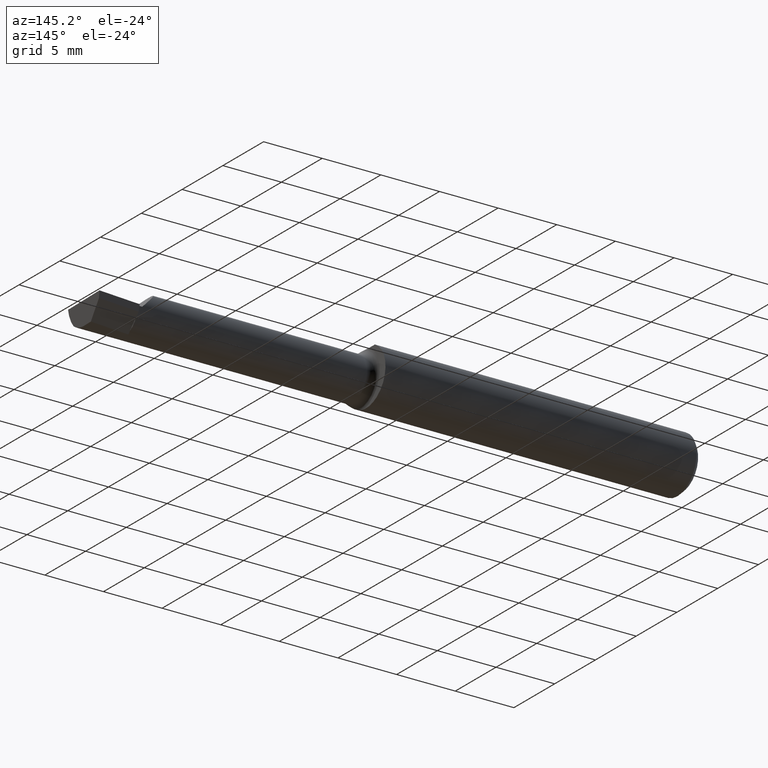
[diagram: clean part render]
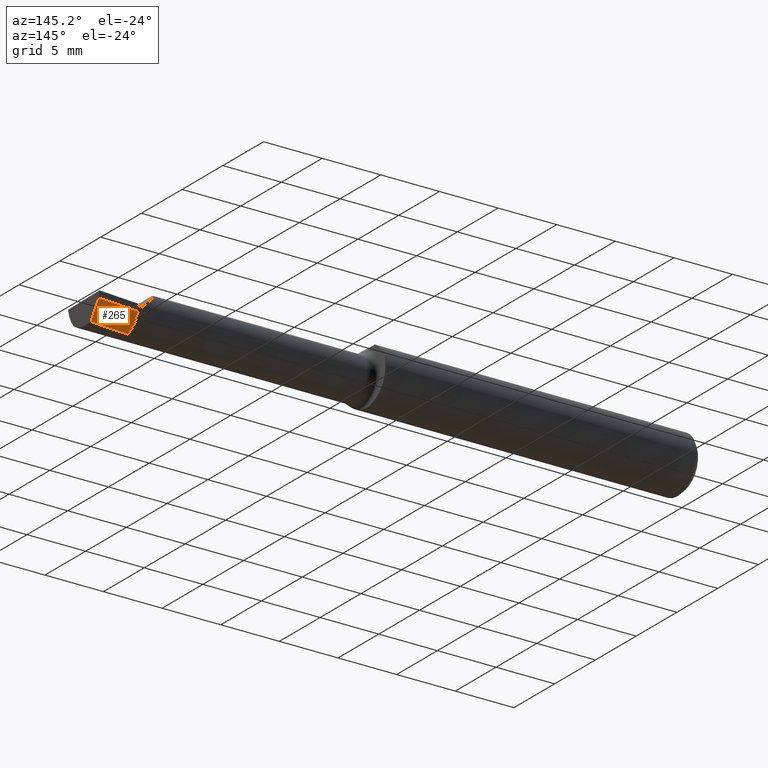
[diagram: same view with one face highlighted and labeled with its STEP entity id]
A machine part, auxiliary view. The second image highlights one B-rep face of the part: STEP entity #265.
In plain terms, the highlighted planar face has unit normal (0.0689, -0.716, 0.6947).
Its self-contained STEP definition (entity closure, byte-faithful):
#10 = VECTOR ( 'NONE', #314, 39.37007874015748143 ) ;
#26 = VERTEX_POINT ( 'NONE', #338 ) ;
#54 = VECTOR ( 'NONE', #136, 39.37007874015748143 ) ;
#74 = DIRECTION ( 'NONE',  ( 0.06894566448119621160, -0.7160281025913035613, 0.6946583704589933683 ) ) ;
#75 = VERTEX_POINT ( 'NONE', #352 ) ;
#78 = ORIENTED_EDGE ( 'NONE', *, *, #355, .F. ) ;
#81 = PLANE ( 'NONE',  #112 ) ;
#82 = EDGE_CURVE ( 'NONE', #75, #623, #153, .T. ) ;
#85 = VECTOR ( 'NONE', #551, 39.37007874015748143 ) ;
#89 = CARTESIAN_POINT ( 'NONE',  ( 1.854999999999999982, 0.003039038829300866676, -0.06252531540616805550 ) ) ;
#112 = AXIS2_PLACEMENT_3D ( 'NONE', #216, #74, #183 ) ;
#136 = DIRECTION ( 'NONE',  ( 0.1053106618241779063, 0.6976485211320171409, 0.7086580314005218595 ) ) ;
#146 = EDGE_CURVE ( 'NONE', #460, #438, #163, .T. ) ;
#147 = VERTEX_POINT ( 'NONE', #360 ) ;
#153 = LINE ( 'NONE', #546, #606 ) ;
#160 = CARTESIAN_POINT ( 'NONE',  ( 1.854999999999999982, 0.02466814268713793043, -0.04023083677511909290 ) ) ;
#161 = ORIENTED_EDGE ( 'NONE', *, *, #597, .T. ) ;
#163 = LINE ( 'NONE', #160, #85 ) ;
#183 = DIRECTION ( 'NONE',  ( 0.000000000000000000, -0.6963153109074924352, -0.7177360153954949196 ) ) ;
#215 = EDGE_CURVE ( 'NONE', #623, #460, #570, .T. ) ;
#216 = CARTESIAN_POINT ( 'NONE',  ( 1.434596552969581662, 0.003814945941878222693, -0.02000000000000000042 ) ) ;
#242 = EDGE_LOOP ( 'NONE', ( #78, #581, #488, #410, #516, #161 ) ) ;
#256 = LINE ( 'NONE', #331, #414 ) ;
#258 = CARTESIAN_POINT ( 'NONE',  ( 1.434596552969581662, 0.003814945941878222693, -0.02000000000000000042 ) ) ;
#265 = ADVANCED_FACE ( 'NONE', ( #508 ), #81, .F. ) ;
#314 = DIRECTION ( 'NONE',  ( 0.9953961983671800740, 0.09584575252021028391, -0.000000000000000000 ) ) ;
#323 = CARTESIAN_POINT ( 'NONE',  ( 1.854999999999999982, 0.03291555154404718353, -0.03172971339384394324 ) ) ;
#331 = CARTESIAN_POINT ( 'NONE',  ( 1.996243047997680486, 0.008417438355111557524, -0.07100000000000021572 ) ) ;
#338 = CARTESIAN_POINT ( 'NONE',  ( 1.989797099917948842, 0.007796764149783521822, -0.07100000000000021572 ) ) ;
#351 = LINE ( 'NONE', #258, #10 ) ;
#352 = CARTESIAN_POINT ( 'NONE',  ( 1.854999999999999982, 0.04429519371539571149, -0.02000000000000000042 ) ) ;
#355 = EDGE_CURVE ( 'NONE', #26, #147, #494, .T. ) ;
#356 = DIRECTION ( 'NONE',  ( 2.972230601656782806E-18, -0.6963153109074924352, -0.7177360153954949196 ) ) ;
#360 = CARTESIAN_POINT ( 'NONE',  ( 1.997375993425186458, 0.05800444260848394012, -0.01999999999999999001 ) ) ;
#405 = EDGE_CURVE ( 'NONE', #438, #26, #256, .T. ) ;
#410 = ORIENTED_EDGE ( 'NONE', *, *, #215, .F. ) ;
#414 = VECTOR ( 'NONE', #448, 39.37007874015748854 ) ;
#423 = DIRECTION ( 'NONE',  ( 2.972230601656782806E-18, -0.6963153109074924352, -0.7177360153954949196 ) ) ;
#438 = VERTEX_POINT ( 'NONE', #543 ) ;
#448 = DIRECTION ( 'NONE',  ( 0.9953961983671800740, 0.09584575252021028391, -2.116984158397002112E-18 ) ) ;
#454 = VECTOR ( 'NONE', #423, 39.37007874015748143 ) ;
#459 = CARTESIAN_POINT ( 'NONE',  ( 1.854999999999999982, 0.02466814268713793043, -0.04023083677511909290 ) ) ;
#460 = VERTEX_POINT ( 'NONE', #89 ) ;
#488 = ORIENTED_EDGE ( 'NONE', *, *, #146, .F. ) ;
#494 = LINE ( 'NONE', #580, #54 ) ;
#508 = FACE_OUTER_BOUND ( 'NONE', #242, .T. ) ;
#516 = ORIENTED_EDGE ( 'NONE', *, *, #82, .F. ) ;
#543 = CARTESIAN_POINT ( 'NONE',  ( 1.854999999999999982, -0.005182720301102405197, -0.07100000000000021572 ) ) ;
#546 = CARTESIAN_POINT ( 'NONE',  ( 1.854999999999999982, 0.02466814268713793043, -0.04023083677511909290 ) ) ;
#551 = DIRECTION ( 'NONE',  ( 2.972230601656782806E-18, -0.6963153109074924352, -0.7177360153954949196 ) ) ;
#570 = LINE ( 'NONE', #459, #454 ) ;
#580 = CARTESIAN_POINT ( 'NONE',  ( 1.987153287650113009, -0.009717623157798458214, -0.08879077981909574979 ) ) ;
#581 = ORIENTED_EDGE ( 'NONE', *, *, #405, .F. ) ;
#597 = EDGE_CURVE ( 'NONE', #75, #147, #351, .T. ) ;
#606 = VECTOR ( 'NONE', #356, 39.37007874015748143 ) ;
#623 = VERTEX_POINT ( 'NONE', #323 ) ;